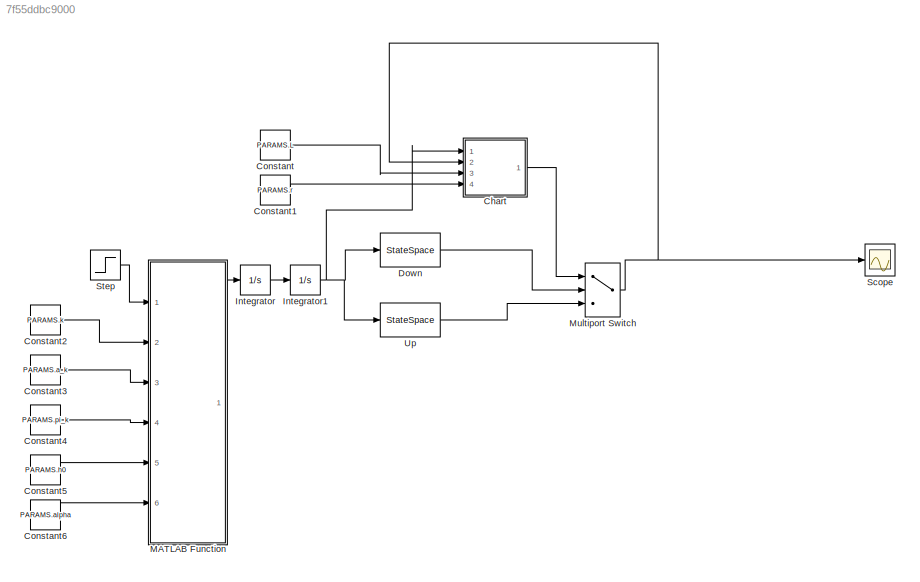
MODEL slx_7f55ddbc9000
KIND model
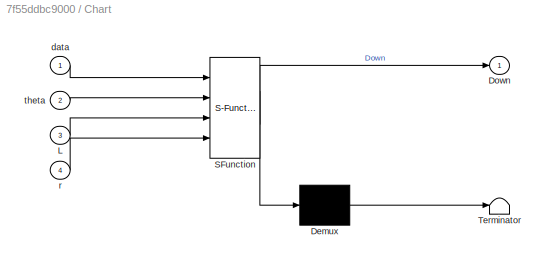
BLOCK [SubSystem] Chart
  ErrorFcn = Stateflow.Translate.translate
  FunctionWithSeparateData = off
  MaskHideContents = off
  MinAlgLoopOccurrences = off
  Opaque = off
  PermitHierarchicalResolution = ExplicitOnly
  Ports = [4, 1]
  PropExecContextOutsideSubsystem = off
  RTWSystemCode = Auto
  RequestExecContextInheritance = off
  SFBlockType = Chart
  TreatAsAtomicUnit = on
BLOCK [Demux] Chart/ Demux 
  Outputs = 1
  Ports = [1, 1]
BLOCK [S-Function] Chart/ SFunction 
  EnableBusSupport = on
  FunctionName = sf_sfun
  PortCounts = [4 2]
  Ports = [4, 2]
  Tag = Stateflow S-Function yoyo_sim2 1
BLOCK [Terminator] Chart/ Terminator 
BLOCK [Outport] Chart/Down
  IconDisplay = Port number
BLOCK [Inport] Chart/L
  IconDisplay = Port number
  Port = 3
BLOCK [Inport] Chart/data
  IconDisplay = Port number
BLOCK [Inport] Chart/r
  IconDisplay = Port number
  Port = 4
BLOCK [Inport] Chart/theta
  IconDisplay = Port number
  Port = 2
BLOCK [Constant] Constant
  Value = PARAMS.L
BLOCK [Constant] Constant1
  Value = PARAMS.r
BLOCK [Constant] Constant2
  Value = PARAMS.k
BLOCK [Constant] Constant3
  Value = PARAMS.a_k
BLOCK [Constant] Constant4
  Value = PARAMS.pi_k
BLOCK [Constant] Constant5
  Value = PARAMS.h0
BLOCK [Constant] Constant6
  Value = PARAMS.alpha
BLOCK [StateSpace] Down
  A = downA
  B = downB
  C = newC
  D = 0
  Ports = [1, 1]
  X0 = 0
BLOCK [Integrator] Integrator
  Ports = [1, 1]
BLOCK [Integrator] Integrator1
  Ports = [1, 1]
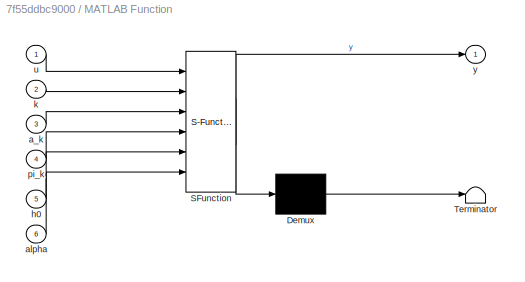
BLOCK [SubSystem] MATLAB Function
  ErrorFcn = Stateflow.Translate.translate
  FunctionWithSeparateData = off
  MaskHideContents = off
  MinAlgLoopOccurrences = off
  Opaque = off
  PermitHierarchicalResolution = ExplicitOnly
  Ports = [6, 1]
  PropExecContextOutsideSubsystem = off
  RTWSystemCode = Auto
  RequestExecContextInheritance = off
  SFBlockType = MATLAB Function
  TreatAsAtomicUnit = on
BLOCK [Demux] MATLAB Function/ Demux 
  Outputs = 1
  Ports = [1, 1]
BLOCK [S-Function] MATLAB Function/ SFunction 
  EnableBusSupport = on
  FunctionName = sf_sfun
  PortCounts = [6 2]
  Ports = [6, 2]
  Tag = Stateflow S-Function yoyo_sim2 2
BLOCK [Terminator] MATLAB Function/ Terminator 
BLOCK [Inport] MATLAB Function/a_k
  IconDisplay = Port number
  Port = 3
BLOCK [Inport] MATLAB Function/alpha
  IconDisplay = Port number
  Port = 6
BLOCK [Inport] MATLAB Function/h0
  IconDisplay = Port number
  Port = 5
BLOCK [Inport] MATLAB Function/k
  IconDisplay = Port number
  Port = 2
BLOCK [Inport] MATLAB Function/pi_k
  IconDisplay = Port number
  Port = 4
BLOCK [Inport] MATLAB Function/u
  IconDisplay = Port number
BLOCK [Outport] MATLAB Function/y
  IconDisplay = Port number
BLOCK [MultiPortSwitch] Multiport Switch
  InputSameDT = off
  Inputs = 2
  Ports = [3, 1]
  SaturateOnIntegerOverflow = off
BLOCK [Scope] Scope
  DataFormat = StructureWithTime
  Floating = off
  NumInputPorts = 1
  Ports = [1]
  SampleTime = 0
  ShowLegends = off
BLOCK [Step] Step
  SampleTime = 0
BLOCK [StateSpace] Up
  A = downA
  B = upB
  C = newC
  D = 0
  Ports = [1, 1]
  X0 = 0
LINE Chart:1 -> Multiport Switch:1
LINE Constant1:1 -> Chart:4
LINE Constant2:1 -> MATLAB Function:2
LINE Constant3:1 -> MATLAB Function:3
LINE Constant4:1 -> MATLAB Function:4
LINE Constant5:1 -> MATLAB Function:5
LINE Constant6:1 -> MATLAB Function:6
LINE Constant:1 -> Chart:3
LINE Down:1 -> Multiport Switch:2
NET Integrator1:1 -> Chart:1, Down:1, Up:1
LINE Integrator:1 -> Integrator1:1
LINE MATLAB Function:1 -> Integrator:1
NET Multiport Switch:1 -> Chart:2, Scope:1
LINE Step:1 -> MATLAB Function:1
LINE Up:1 -> Multiport Switch:3
note: NET lines group one-source signal fan-out (src -> all destinations, sorted); 1:1 wires keep LINE
